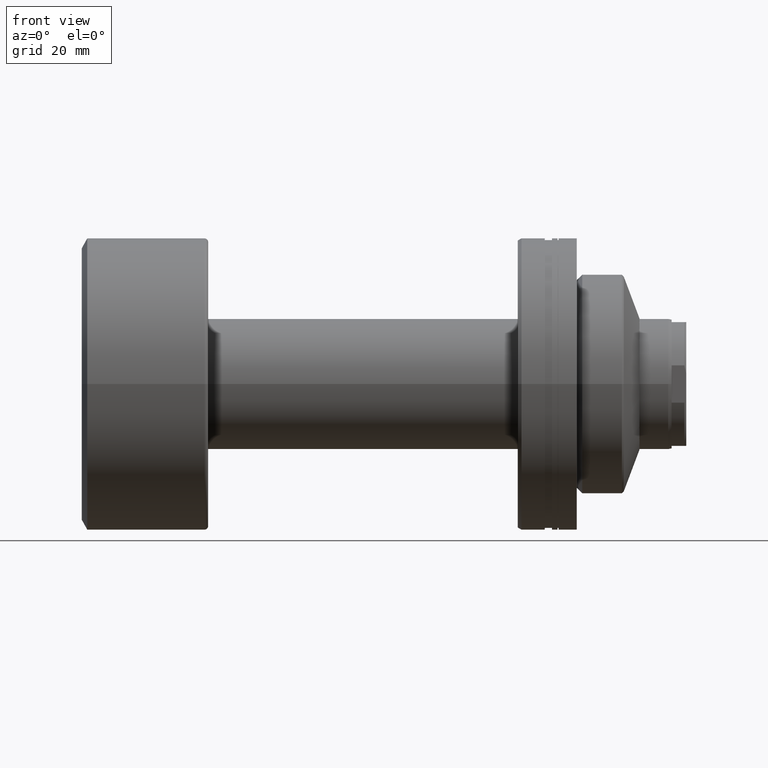
[diagram: clean part render]
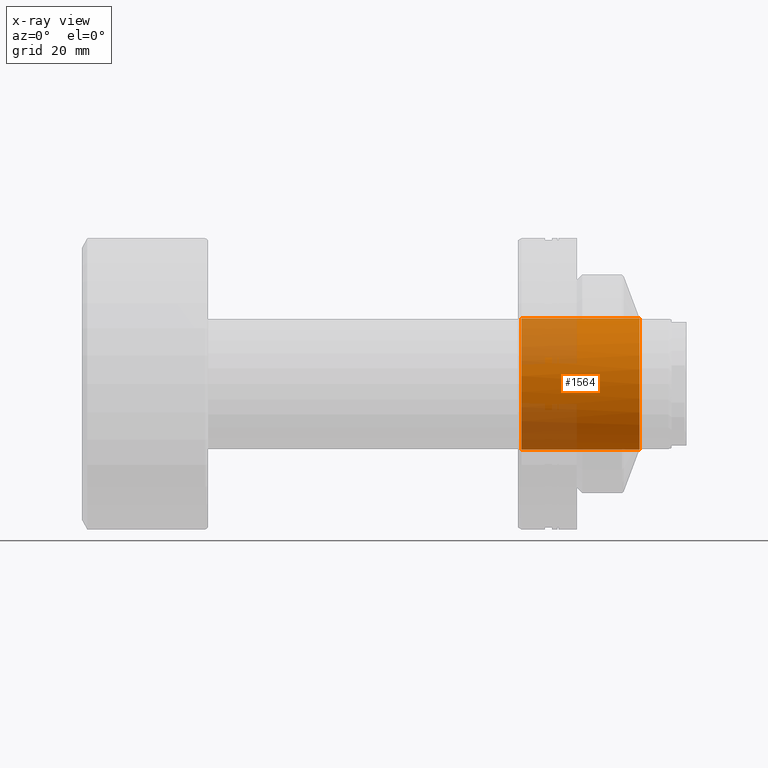
[diagram: x-ray — body ghosted, one internal face saturated and labeled with its STEP entity id]
A machine part, front view, then the same camera in x-ray: the body is ghosted and one INTERNAL B-rep face — a face not visible from any outside direction — is saturated and labeled: STEP entity #1564.
In plain terms, the highlighted cylindrical surface (partial cylindrical patch) has radius 18 mm, axis along (1, 0, 0).
Its self-contained STEP definition (entity closure, byte-faithful):
#7 = EDGE_LOOP ( 'NONE', ( #847, #2163, #854, #1198, #452 ) ) ;
#137 = CARTESIAN_POINT ( 'NONE',  ( -91.11168824543142364, 2.204364238465235033E-15, 18.00000000000000000 ) ) ;
#187 = DIRECTION ( 'NONE',  ( 3.854941057726238097E-16, -1.000000000000000000, 0.000000000000000000 ) ) ;
#317 = VECTOR ( 'NONE', #1911, 1000.000000000000000 ) ;
#335 = CYLINDRICAL_SURFACE ( 'NONE', #2212, 18.00000000000000000 ) ;
#344 = CIRCLE ( 'NONE', #2297, 18.00000000000000000 ) ;
#358 = CIRCLE ( 'NONE', #941, 18.00000000000000000 ) ;
#387 = CIRCLE ( 'NONE', #1986, 18.00000000000000000 ) ;
#410 = LINE ( 'NONE', #753, #317 ) ;
#452 = ORIENTED_EDGE ( 'NONE', *, *, #1131, .F. ) ;
#477 = DIRECTION ( 'NONE',  ( -1.000000000000000000, -3.738146982434194072E-16, 0.000000000000000000 ) ) ;
#586 = DIRECTION ( 'NONE',  ( -1.000000000000000000, -3.738146982434194072E-16, 0.000000000000000000 ) ) ;
#620 = EDGE_CURVE ( 'NONE', #698, #1110, #387, .T. ) ;
#698 = VERTEX_POINT ( 'NONE', #1328 ) ;
#723 = DIRECTION ( 'NONE',  ( 3.854941057726238097E-16, -1.000000000000000000, 0.000000000000000000 ) ) ;
#753 = CARTESIAN_POINT ( 'NONE',  ( -91.11168824543142364, 0.000000000000000000, -18.00000000000000000 ) ) ;
#847 = ORIENTED_EDGE ( 'NONE', *, *, #620, .T. ) ;
#854 = ORIENTED_EDGE ( 'NONE', *, *, #1957, .F. ) ;
#887 = DIRECTION ( 'NONE',  ( 0.000000000000000000, 0.000000000000000000, -1.000000000000000000 ) ) ;
#941 = AXIS2_PLACEMENT_3D ( 'NONE', #1605, #586, #723 ) ;
#1008 = VERTEX_POINT ( 'NONE', #1584 ) ;
#1074 = LINE ( 'NONE', #137, #2243 ) ;
#1110 = VERTEX_POINT ( 'NONE', #1662 ) ;
#1131 = EDGE_CURVE ( 'NONE', #698, #1812, #410, .T. ) ;
#1198 = ORIENTED_EDGE ( 'NONE', *, *, #1712, .F. ) ;
#1232 = DIRECTION ( 'NONE',  ( 1.000000000000000000, -0.000000000000000000, -0.000000000000000000 ) ) ;
#1244 = CARTESIAN_POINT ( 'NONE',  ( -6.772881355932618419, 2.204364238465240161E-15, 18.00000000000000000 ) ) ;
#1328 = CARTESIAN_POINT ( 'NONE',  ( -39.19999999999999574, 0.000000000000000000, -18.00000000000000000 ) ) ;
#1370 = DIRECTION ( 'NONE',  ( -1.000000000000000000, 0.000000000000000000, 0.000000000000000000 ) ) ;
#1376 = CARTESIAN_POINT ( 'NONE',  ( -91.11168824543142364, 0.000000000000000000, 0.000000000000000000 ) ) ;
#1439 = VERTEX_POINT ( 'NONE', #1244 ) ;
#1489 = EDGE_CURVE ( 'NONE', #1110, #1439, #1074, .T. ) ;
#1519 = CARTESIAN_POINT ( 'NONE',  ( -6.772881355932618419, 4.622231866529366047E-30, -18.00000000000000000 ) ) ;
#1564 = ADVANCED_FACE ( 'NONE', ( #1923 ), #335, .F. ) ;
#1584 = CARTESIAN_POINT ( 'NONE',  ( -6.772881355932611314, -17.99999999999998934, 0.000000000000000000 ) ) ;
#1605 = CARTESIAN_POINT ( 'NONE',  ( -6.772881355932618419, 8.787314973116373205E-15, 0.000000000000000000 ) ) ;
#1662 = CARTESIAN_POINT ( 'NONE',  ( -39.19999999999999574, 2.204364238465235033E-15, 18.00000000000000000 ) ) ;
#1710 = CARTESIAN_POINT ( 'NONE',  ( -6.772881355932618419, 8.787314973116373205E-15, 0.000000000000000000 ) ) ;
#1712 = EDGE_CURVE ( 'NONE', #1812, #1008, #358, .T. ) ;
#1769 = CARTESIAN_POINT ( 'NONE',  ( -39.19999999999999574, 0.000000000000000000, 0.000000000000000000 ) ) ;
#1812 = VERTEX_POINT ( 'NONE', #1519 ) ;
#1911 = DIRECTION ( 'NONE',  ( 1.000000000000000000, -0.000000000000000000, -0.000000000000000000 ) ) ;
#1923 = FACE_OUTER_BOUND ( 'NONE', #7, .T. ) ;
#1957 = EDGE_CURVE ( 'NONE', #1008, #1439, #344, .T. ) ;
#1986 = AXIS2_PLACEMENT_3D ( 'NONE', #1769, #1370, #887 ) ;
#2132 = DIRECTION ( 'NONE',  ( 0.000000000000000000, 0.000000000000000000, -1.000000000000000000 ) ) ;
#2163 = ORIENTED_EDGE ( 'NONE', *, *, #1489, .T. ) ;
#2212 = AXIS2_PLACEMENT_3D ( 'NONE', #1376, #1232, #2132 ) ;
#2243 = VECTOR ( 'NONE', #2314, 1000.000000000000000 ) ;
#2297 = AXIS2_PLACEMENT_3D ( 'NONE', #1710, #477, #187 ) ;
#2314 = DIRECTION ( 'NONE',  ( 1.000000000000000000, -0.000000000000000000, -0.000000000000000000 ) ) ;